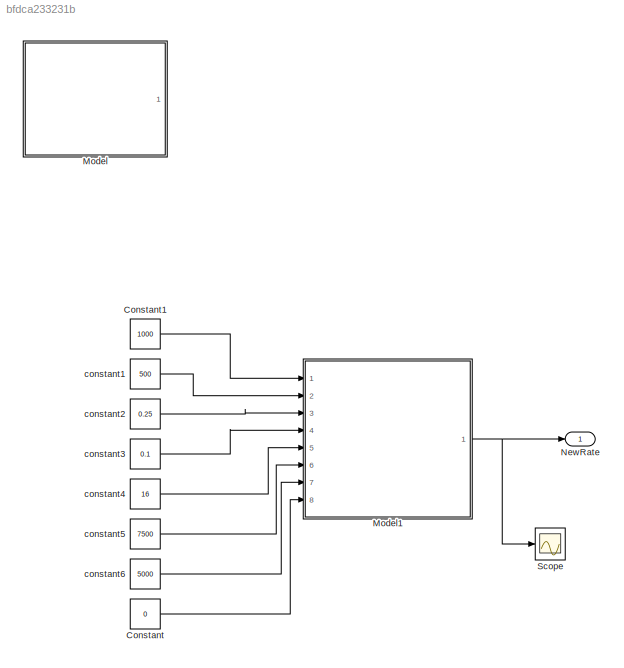
MODEL slx_bfdca233231b
KIND model
CONFIG AbsTol = auto
CONFIG EnableMultiTasking = on
CONFIG FixedStep = 1e-3
CONFIG MaxStep = auto
CONFIG MinStep = auto
CONFIG RelTol = 1e-3
CONFIG SampleTimeConstraint = Unconstrained
CONFIG Solver = FixedStepAuto
CONFIG SolverName = FixedStepAuto
CONFIG StartTime = 0.0
CONFIG StopTime = 10.0
BLOCK [Constant] Constant
  OutDataTypeStr = uint8
  Value = 0
BLOCK [Constant] Constant1
  OutDataTypeStr = uint16
  Value = 1000
BLOCK [ModelReference] Model
  Commented = on
  ModelNameDialog = ProcessAccelerometer.slx
  ModelReferenceVersion = 1.6
  Ports = [0, 1]
BLOCK [ModelReference] Model1
  ModelNameDialog = RateAdaptive.slx
  ModelReferenceVersion = 1.21
  Ports = [8, 1]
BLOCK [Outport] NewRate
BLOCK [Scope] Scope
  Floating = off
  NumInputPorts = 1
  Ports = [1]
  ScopeSpecificationString = Simulink.scopes.TimeScopeBlockCfg('CurrentConfiguration', extmgr.ConfigurationSet(extmgr.Configuration('Core','General UI',true),extmgr.Configuration('Core','Source UI',true),extmgr.Configuration('Sources','WiredSimulink',true),extmgr.Configuration('Visuals','Time Domain',true,'SerializedDisplays',{struct('MinYLimReal','900.00000','MaxYLimReal','1100.00000','YLabelReal','','MinYLimMag','900.00000'...<+1399ch>
BLOCK [Constant] constant1
  OutDataTypeStr = uint16
  Value = 500
BLOCK [Constant] constant2
  OutDataTypeStr = single
  Value = 0.25
BLOCK [Constant] constant3
  OutDataTypeStr = single
  Value = 0.1
BLOCK [Constant] constant4
  OutDataTypeStr = uint8
  Value = 16
BLOCK [Constant] constant5
  OutDataTypeStr = uint16
  Value = 7500
BLOCK [Constant] constant6
  OutDataTypeStr = uint16
  Value = 5000
LINE Constant1:1 -> Model1:1
LINE Constant:1 -> Model1:8
NET Model1:1 -> NewRate:1, Scope:1
LINE constant1:1 -> Model1:2
LINE constant2:1 -> Model1:3
LINE constant3:1 -> Model1:4
LINE constant4:1 -> Model1:5
LINE constant5:1 -> Model1:6
LINE constant6:1 -> Model1:7
note: NET lines group one-source signal fan-out (src -> all destinations, sorted); 1:1 wires keep LINE
